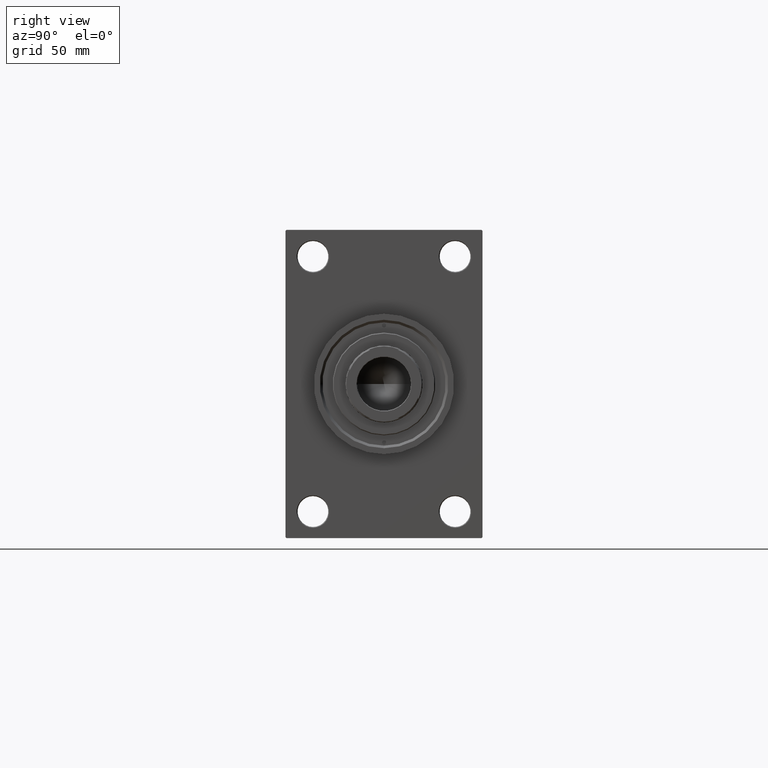
[diagram: clean part render]
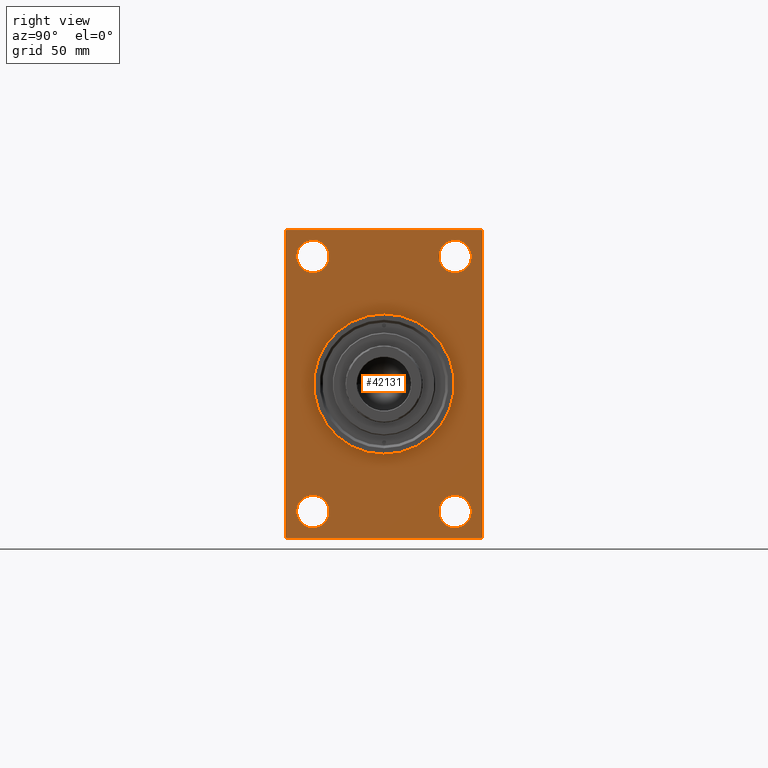
[diagram: same view with one face highlighted and labeled with its STEP entity id]
A machine part, right view. The second image highlights one B-rep face of the part: STEP entity #42131.
In plain terms, the highlighted planar face has unit normal (-1, 0, 0).
Its self-contained STEP definition (entity closure, byte-faithful):
#337 = AXIS2_PLACEMENT_3D ( 'NONE', #36000, #25131, #21957 ) ;
#832 = ORIENTED_EDGE ( 'NONE', *, *, #29521, .T. ) ;
#1577 = DIRECTION ( 'NONE',  ( -1.000000000000000000, 0.000000000000000000, -0.000000000000000000 ) ) ;
#1617 = VECTOR ( 'NONE', #13247, 999.9999999999998863 ) ;
#1784 = CARTESIAN_POINT ( 'NONE',  ( 299.0000000000000000, 0.000000000000000000, 41.00000000000000000 ) ) ;
#2104 = EDGE_CURVE ( 'NONE', #22390, #21198, #9696, .T. ) ;
#2453 = EDGE_CURVE ( 'NONE', #25323, #7634, #46707, .T. ) ;
#3030 = CARTESIAN_POINT ( 'NONE',  ( 299.0000000000000000, 41.50000000000000711, 74.50000000000001421 ) ) ;
#3586 = EDGE_CURVE ( 'NONE', #38957, #34865, #37459, .T. ) ;
#3597 = DIRECTION ( 'NONE',  ( 0.000000000000000000, 0.000000000000000000, 1.000000000000000000 ) ) ;
#3684 = DIRECTION ( 'NONE',  ( -0.000000000000000000, -0.7071067811865131558, -0.7071067811865818786 ) ) ;
#4312 = DIRECTION ( 'NONE',  ( 0.000000000000000000, 0.000000000000000000, -1.000000000000000000 ) ) ;
#4482 = CARTESIAN_POINT ( 'NONE',  ( 299.0000000000000000, 5.021051876504148963E-15, -41.00000000000000000 ) ) ;
#4824 = FACE_BOUND ( 'NONE', #28609, .T. ) ;
#5300 = CARTESIAN_POINT ( 'NONE',  ( 299.0000000000000000, 57.49999999999997868, -89.49999999999995737 ) ) ;
#5316 = CARTESIAN_POINT ( 'NONE',  ( 299.0000000000000000, 41.50000000000000711, -84.00000000000000000 ) ) ;
#5453 = DIRECTION ( 'NONE',  ( 0.000000000000000000, 0.000000000000000000, 1.000000000000000000 ) ) ;
#5760 = DIRECTION ( 'NONE',  ( -0.000000000000000000, 0.000000000000000000, 1.000000000000000000 ) ) ;
#6413 = DIRECTION ( 'NONE',  ( 0.000000000000000000, 0.000000000000000000, 1.000000000000000000 ) ) ;
#6728 = DIRECTION ( 'NONE',  ( -1.000000000000000000, 0.000000000000000000, -0.000000000000000000 ) ) ;
#6736 = CARTESIAN_POINT ( 'NONE',  ( 299.0000000000000000, 57.49999999999997158, 89.49999999999992895 ) ) ;
#7178 = VECTOR ( 'NONE', #7466, 1000.000000000000114 ) ;
#7234 = ORIENTED_EDGE ( 'NONE', *, *, #43146, .T. ) ;
#7342 = DIRECTION ( 'NONE',  ( 1.000000000000000000, 0.000000000000000000, 0.000000000000000000 ) ) ;
#7392 = ORIENTED_EDGE ( 'NONE', *, *, #30334, .T. ) ;
#7466 = DIRECTION ( 'NONE',  ( 0.000000000000000000, -0.7071067811865474617, 0.7071067811865474617 ) ) ;
#7634 = VERTEX_POINT ( 'NONE', #19847 ) ;
#7917 = VECTOR ( 'NONE', #14692, 1000.000000000000000 ) ;
#9007 = EDGE_CURVE ( 'NONE', #45875, #37465, #43053, .T. ) ;
#9402 = DIRECTION ( 'NONE',  ( 0.000000000000000000, 0.000000000000000000, 1.000000000000000000 ) ) ;
#9604 = VECTOR ( 'NONE', #24699, 1000.000000000000000 ) ;
#9696 = LINE ( 'NONE', #31498, #9604 ) ;
#9912 = CIRCLE ( 'NONE', #36982, 41.00000000000000000 ) ;
#10380 = AXIS2_PLACEMENT_3D ( 'NONE', #19822, #6728, #5760 ) ;
#10566 = CIRCLE ( 'NONE', #15197, 9.500000000000008882 ) ;
#11134 = EDGE_CURVE ( 'NONE', #34484, #19008, #10566, .T. ) ;
#11140 = ORIENTED_EDGE ( 'NONE', *, *, #2453, .T. ) ;
#11201 = VERTEX_POINT ( 'NONE', #13985 ) ;
#11261 = CIRCLE ( 'NONE', #17417, 41.00000000000000000 ) ;
#11388 = VERTEX_POINT ( 'NONE', #23899 ) ;
#11910 = CARTESIAN_POINT ( 'NONE',  ( 299.0000000000000000, -41.49999999999999289, 65.00000000000000000 ) ) ;
#12797 = VERTEX_POINT ( 'NONE', #5316 ) ;
#13068 = DIRECTION ( 'NONE',  ( 0.000000000000000000, 0.000000000000000000, 1.000000000000000000 ) ) ;
#13247 = DIRECTION ( 'NONE',  ( -0.000000000000000000, 0.7071067811865574537, 0.7071067811865376918 ) ) ;
#13251 = DIRECTION ( 'NONE',  ( 0.000000000000000000, -1.000000000000000000, -1.206764157201257045E-16 ) ) ;
#13985 = CARTESIAN_POINT ( 'NONE',  ( 299.0000000000000000, 41.50000000000000711, -64.99999999999998579 ) ) ;
#14380 = CIRCLE ( 'NONE', #42968, 9.500000000000008882 ) ;
#14632 = CARTESIAN_POINT ( 'NONE',  ( 299.0000000000000000, 0.000000000000000000, 0.000000000000000000 ) ) ;
#14692 = DIRECTION ( 'NONE',  ( 0.000000000000000000, -1.000000000000000000, -1.206764157201257291E-16 ) ) ;
#14702 = CARTESIAN_POINT ( 'NONE',  ( 299.0000000000000000, 56.99999999999992184, 89.99999999999998579 ) ) ;
#14834 = DIRECTION ( 'NONE',  ( -1.000000000000000000, 0.000000000000000000, -0.000000000000000000 ) ) ;
#15197 = AXIS2_PLACEMENT_3D ( 'NONE', #17854, #32401, #3597 ) ;
#15292 = VERTEX_POINT ( 'NONE', #1784 ) ;
#15466 = AXIS2_PLACEMENT_3D ( 'NONE', #39546, #14834, #40508 ) ;
#15692 = FACE_BOUND ( 'NONE', #46739, .T. ) ;
#15767 = CIRCLE ( 'NONE', #47467, 9.500000000000008882 ) ;
#15963 = CARTESIAN_POINT ( 'NONE',  ( 299.0000000000000000, -57.00000000000002132, -90.00000000000001421 ) ) ;
#16132 = CARTESIAN_POINT ( 'NONE',  ( 299.0000000000000000, -57.50000000000002132, 89.99999999999997158 ) ) ;
#16581 = AXIS2_PLACEMENT_3D ( 'NONE', #34748, #1577, #5453 ) ;
#16746 = CARTESIAN_POINT ( 'NONE',  ( 299.0000000000000000, -57.00000000000001421, 89.99999999999997158 ) ) ;
#16931 = CARTESIAN_POINT ( 'NONE',  ( 299.0000000000000000, -57.50000000000002132, 89.49999999999991473 ) ) ;
#17037 = EDGE_CURVE ( 'NONE', #15292, #21900, #9912, .T. ) ;
#17417 = AXIS2_PLACEMENT_3D ( 'NONE', #14632, #25067, #21171 ) ;
#17854 = CARTESIAN_POINT ( 'NONE',  ( 299.0000000000000000, -41.49999999999999289, 74.50000000000001421 ) ) ;
#18302 = CARTESIAN_POINT ( 'NONE',  ( 299.0000000000000000, 57.49999999999997868, -89.49999999999990052 ) ) ;
#18332 = LINE ( 'NONE', #33107, #7917 ) ;
#18789 = EDGE_LOOP ( 'NONE', ( #33452, #11140 ) ) ;
#18993 = EDGE_CURVE ( 'NONE', #34865, #38209, #19843, .T. ) ;
#19008 = VERTEX_POINT ( 'NONE', #23472 ) ;
#19569 = PLANE ( 'NONE',  #10380 ) ;
#19757 = AXIS2_PLACEMENT_3D ( 'NONE', #29456, #22184, #43736 ) ;
#19822 = CARTESIAN_POINT ( 'NONE',  ( 299.0000000000000000, 0.000000000000000000, 0.000000000000000000 ) ) ;
#19843 = LINE ( 'NONE', #15963, #43230 ) ;
#19847 = CARTESIAN_POINT ( 'NONE',  ( 299.0000000000000000, -41.49999999999999289, -83.99999999999992895 ) ) ;
#20442 = EDGE_CURVE ( 'NONE', #19008, #34484, #34801, .T. ) ;
#20758 = CARTESIAN_POINT ( 'NONE',  ( 299.0000000000000000, -41.49999999999999289, -74.49999999999998579 ) ) ;
#21171 = DIRECTION ( 'NONE',  ( 0.000000000000000000, 0.000000000000000000, -1.000000000000000000 ) ) ;
#21198 = VERTEX_POINT ( 'NONE', #18302 ) ;
#21419 = DIRECTION ( 'NONE',  ( -1.000000000000000000, 0.000000000000000000, -0.000000000000000000 ) ) ;
#21900 = VERTEX_POINT ( 'NONE', #4482 ) ;
#21957 = DIRECTION ( 'NONE',  ( 0.000000000000000000, 0.000000000000000000, 1.000000000000000000 ) ) ;
#22184 = DIRECTION ( 'NONE',  ( -1.000000000000000000, 0.000000000000000000, -0.000000000000000000 ) ) ;
#22390 = VERTEX_POINT ( 'NONE', #6736 ) ;
#22584 = DIRECTION ( 'NONE',  ( 0.000000000000000000, 0.000000000000000000, -1.000000000000000000 ) ) ;
#23176 = ORIENTED_EDGE ( 'NONE', *, *, #42182, .F. ) ;
#23219 = FACE_BOUND ( 'NONE', #31660, .T. ) ;
#23472 = CARTESIAN_POINT ( 'NONE',  ( 299.0000000000000000, -41.49999999999999289, 84.00000000000001421 ) ) ;
#23697 = FACE_OUTER_BOUND ( 'NONE', #30055, .T. ) ;
#23878 = VERTEX_POINT ( 'NONE', #16746 ) ;
#23899 = CARTESIAN_POINT ( 'NONE',  ( 299.0000000000000000, 56.99999999999992895, -90.00000000000000000 ) ) ;
#24152 = LINE ( 'NONE', #5300, #1617 ) ;
#24642 = CARTESIAN_POINT ( 'NONE',  ( 299.0000000000000000, 57.49999999999997868, -90.00000000000000000 ) ) ;
#24699 = DIRECTION ( 'NONE',  ( 0.000000000000000000, 3.854941057726238467E-17, -1.000000000000000000 ) ) ;
#25067 = DIRECTION ( 'NONE',  ( 1.000000000000000000, 0.000000000000000000, 0.000000000000000000 ) ) ;
#25131 = DIRECTION ( 'NONE',  ( -1.000000000000000000, 0.000000000000000000, -0.000000000000000000 ) ) ;
#25323 = VERTEX_POINT ( 'NONE', #42548 ) ;
#25624 = VERTEX_POINT ( 'NONE', #28146 ) ;
#25688 = EDGE_CURVE ( 'NONE', #23878, #38957, #43626, .T. ) ;
#25880 = VECTOR ( 'NONE', #13251, 1000.000000000000000 ) ;
#26120 = EDGE_CURVE ( 'NONE', #11388, #21198, #24152, .T. ) ;
#26693 = VECTOR ( 'NONE', #4312, 1000.000000000000000 ) ;
#28146 = CARTESIAN_POINT ( 'NONE',  ( 299.0000000000000000, 56.99999999999992184, 89.99999999999998579 ) ) ;
#28609 = EDGE_LOOP ( 'NONE', ( #43702, #38762 ) ) ;
#28640 = CARTESIAN_POINT ( 'NONE',  ( 299.0000000000000000, -57.50000000000002132, 89.49999999999991473 ) ) ;
#29432 = CARTESIAN_POINT ( 'NONE',  ( 299.0000000000000000, -57.50000000000002132, -89.49999999999997158 ) ) ;
#29456 = CARTESIAN_POINT ( 'NONE',  ( 299.0000000000000000, 41.50000000000000711, 74.50000000000001421 ) ) ;
#29521 = EDGE_CURVE ( 'NONE', #25624, #23878, #18332, .T. ) ;
#30055 = EDGE_LOOP ( 'NONE', ( #43086, #36027, #23176, #36407, #34771, #7392, #832, #44266 ) ) ;
#30334 = EDGE_CURVE ( 'NONE', #22390, #25624, #47882, .T. ) ;
#30499 = FACE_BOUND ( 'NONE', #39161, .T. ) ;
#30849 = ORIENTED_EDGE ( 'NONE', *, *, #11134, .T. ) ;
#31485 = CARTESIAN_POINT ( 'NONE',  ( 299.0000000000000000, 41.50000000000000711, -74.50000000000000000 ) ) ;
#31498 = CARTESIAN_POINT ( 'NONE',  ( 299.0000000000000000, 57.49999999999997158, 89.99999999999998579 ) ) ;
#31660 = EDGE_LOOP ( 'NONE', ( #30849, #40792 ) ) ;
#32263 = ORIENTED_EDGE ( 'NONE', *, *, #38020, .T. ) ;
#32401 = DIRECTION ( 'NONE',  ( -1.000000000000000000, 0.000000000000000000, -0.000000000000000000 ) ) ;
#32540 = VECTOR ( 'NONE', #3684, 1000.000000000000000 ) ;
#33107 = CARTESIAN_POINT ( 'NONE',  ( 299.0000000000000000, 57.49999999999997158, 89.99999999999998579 ) ) ;
#33452 = ORIENTED_EDGE ( 'NONE', *, *, #34575, .T. ) ;
#34083 = EDGE_CURVE ( 'NONE', #37465, #45875, #15767, .T. ) ;
#34484 = VERTEX_POINT ( 'NONE', #11910 ) ;
#34575 = EDGE_CURVE ( 'NONE', #7634, #25323, #40558, .T. ) ;
#34748 = CARTESIAN_POINT ( 'NONE',  ( 299.0000000000000000, 41.50000000000000711, -74.50000000000000000 ) ) ;
#34771 = ORIENTED_EDGE ( 'NONE', *, *, #2104, .F. ) ;
#34801 = CIRCLE ( 'NONE', #15466, 9.500000000000008882 ) ;
#34865 = VERTEX_POINT ( 'NONE', #29432 ) ;
#36000 = CARTESIAN_POINT ( 'NONE',  ( 299.0000000000000000, -41.49999999999999289, -74.49999999999998579 ) ) ;
#36007 = DIRECTION ( 'NONE',  ( -1.000000000000000000, 0.000000000000000000, -0.000000000000000000 ) ) ;
#36027 = ORIENTED_EDGE ( 'NONE', *, *, #18993, .T. ) ;
#36407 = ORIENTED_EDGE ( 'NONE', *, *, #26120, .T. ) ;
#36982 = AXIS2_PLACEMENT_3D ( 'NONE', #40498, #7342, #22584 ) ;
#37136 = EDGE_CURVE ( 'NONE', #21900, #15292, #11261, .T. ) ;
#37459 = LINE ( 'NONE', #16132, #26693 ) ;
#37465 = VERTEX_POINT ( 'NONE', #44646 ) ;
#37496 = CARTESIAN_POINT ( 'NONE',  ( 299.0000000000000000, -57.00000000000002132, -90.00000000000001421 ) ) ;
#37978 = FACE_BOUND ( 'NONE', #18789, .T. ) ;
#38020 = EDGE_CURVE ( 'NONE', #11201, #12797, #14380, .T. ) ;
#38209 = VERTEX_POINT ( 'NONE', #37496 ) ;
#38762 = ORIENTED_EDGE ( 'NONE', *, *, #37136, .F. ) ;
#38957 = VERTEX_POINT ( 'NONE', #16931 ) ;
#39161 = EDGE_LOOP ( 'NONE', ( #43222, #47032 ) ) ;
#39546 = CARTESIAN_POINT ( 'NONE',  ( 299.0000000000000000, -41.49999999999999289, 74.50000000000001421 ) ) ;
#39784 = CIRCLE ( 'NONE', #16581, 9.500000000000008882 ) ;
#40498 = CARTESIAN_POINT ( 'NONE',  ( 299.0000000000000000, 0.000000000000000000, 0.000000000000000000 ) ) ;
#40508 = DIRECTION ( 'NONE',  ( 0.000000000000000000, 0.000000000000000000, 1.000000000000000000 ) ) ;
#40558 = CIRCLE ( 'NONE', #43670, 9.499999999999953815 ) ;
#40792 = ORIENTED_EDGE ( 'NONE', *, *, #20442, .T. ) ;
#41881 = DIRECTION ( 'NONE',  ( 0.000000000000000000, 0.7071067811865573427, -0.7071067811865378028 ) ) ;
#42131 = ADVANCED_FACE ( 'NONE', ( #23219, #37978, #15692, #30499, #4824, #23697 ), #19569, .F. ) ;
#42182 = EDGE_CURVE ( 'NONE', #11388, #38209, #46424, .T. ) ;
#42378 = DIRECTION ( 'NONE',  ( -1.000000000000000000, 0.000000000000000000, -0.000000000000000000 ) ) ;
#42548 = CARTESIAN_POINT ( 'NONE',  ( 299.0000000000000000, -41.49999999999999289, -65.00000000000002842 ) ) ;
#42968 = AXIS2_PLACEMENT_3D ( 'NONE', #31485, #42378, #13068 ) ;
#43053 = CIRCLE ( 'NONE', #19757, 9.500000000000008882 ) ;
#43086 = ORIENTED_EDGE ( 'NONE', *, *, #3586, .T. ) ;
#43146 = EDGE_CURVE ( 'NONE', #12797, #11201, #39784, .T. ) ;
#43222 = ORIENTED_EDGE ( 'NONE', *, *, #34083, .T. ) ;
#43230 = VECTOR ( 'NONE', #41881, 1000.000000000000000 ) ;
#43626 = LINE ( 'NONE', #28640, #32540 ) ;
#43649 = CARTESIAN_POINT ( 'NONE',  ( 299.0000000000000000, 41.50000000000000711, 84.00000000000001421 ) ) ;
#43670 = AXIS2_PLACEMENT_3D ( 'NONE', #20758, #36007, #9402 ) ;
#43702 = ORIENTED_EDGE ( 'NONE', *, *, #17037, .F. ) ;
#43736 = DIRECTION ( 'NONE',  ( 0.000000000000000000, 0.000000000000000000, 1.000000000000000000 ) ) ;
#44266 = ORIENTED_EDGE ( 'NONE', *, *, #25688, .T. ) ;
#44646 = CARTESIAN_POINT ( 'NONE',  ( 299.0000000000000000, 41.50000000000000711, 65.00000000000000000 ) ) ;
#45875 = VERTEX_POINT ( 'NONE', #43649 ) ;
#46424 = LINE ( 'NONE', #24642, #25880 ) ;
#46707 = CIRCLE ( 'NONE', #337, 9.499999999999953815 ) ;
#46739 = EDGE_LOOP ( 'NONE', ( #7234, #32263 ) ) ;
#47032 = ORIENTED_EDGE ( 'NONE', *, *, #9007, .T. ) ;
#47467 = AXIS2_PLACEMENT_3D ( 'NONE', #3030, #21419, #6413 ) ;
#47882 = LINE ( 'NONE', #14702, #7178 ) ;